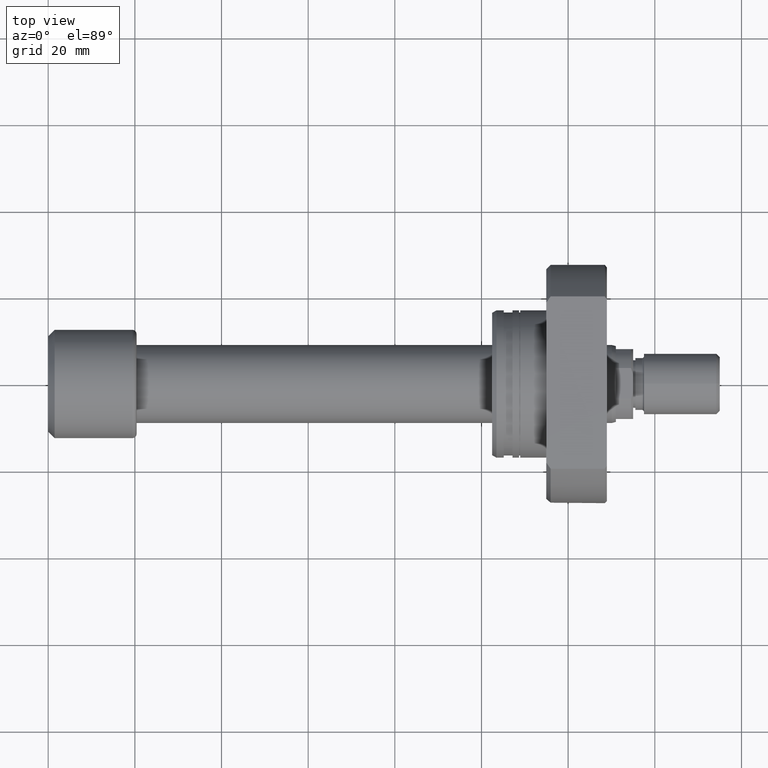
[diagram: clean part render]
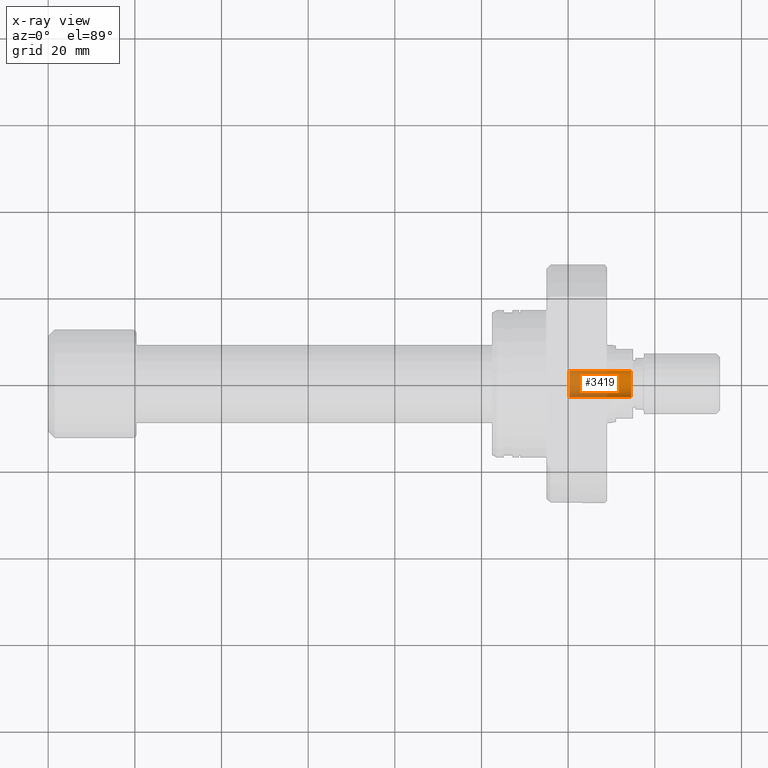
[diagram: x-ray — body ghosted, one internal face saturated and labeled with its STEP entity id]
A machine part, top view, then the same camera in x-ray: the body is ghosted and one INTERNAL B-rep face — a face not visible from any outside direction — is saturated and labeled: STEP entity #3419.
In plain terms, the highlighted cylindrical surface (edge-blend (fillet) strip) has radius 3 mm, axis along (1, -0, 0).
Its self-contained STEP definition (entity closure, byte-faithful):
#184 = EDGE_CURVE ( 'NONE', #1557, #2580, #2961, .T. ) ;
#368 = DIRECTION ( 'NONE',  ( 1.000000000000000000, -1.657264799492230625E-14, -0.000000000000000000 ) ) ;
#469 = VERTEX_POINT ( 'NONE', #3537 ) ;
#563 = AXIS2_PLACEMENT_3D ( 'NONE', #3225, #368, #586 ) ;
#586 = DIRECTION ( 'NONE',  ( 1.850371707708190232E-14, 1.000000000000000000, 0.000000000000000000 ) ) ;
#709 = ORIENTED_EDGE ( 'NONE', *, *, #3554, .T. ) ;
#731 = EDGE_CURVE ( 'NONE', #2580, #469, #2903, .T. ) ;
#876 = DIRECTION ( 'NONE',  ( 1.000000000000000000, -1.657264799492230625E-14, -0.000000000000000000 ) ) ;
#1137 = CARTESIAN_POINT ( 'NONE',  ( 134.5000000000000568, -2.229021155317051935E-12, 0.000000000000000000 ) ) ;
#1217 = VERTEX_POINT ( 'NONE', #3210 ) ;
#1345 = AXIS2_PLACEMENT_3D ( 'NONE', #2220, #3661, #2055 ) ;
#1557 = VERTEX_POINT ( 'NONE', #1675 ) ;
#1675 = CARTESIAN_POINT ( 'NONE',  ( 120.2999999999999261, -3.000000000002648548, 3.673940397442862041E-16 ) ) ;
#1724 = LINE ( 'NONE', #2335, #3016 ) ;
#2055 = DIRECTION ( 'NONE',  ( 1.850371707708190232E-14, 1.000000000000000000, 0.000000000000000000 ) ) ;
#2079 = CYLINDRICAL_SURFACE ( 'NONE', #563, 3.000000000000655032 ) ;
#2220 = CARTESIAN_POINT ( 'NONE',  ( 120.2999999999999829, -1.993689553789153133E-12, 0.000000000000000000 ) ) ;
#2318 = DIRECTION ( 'NONE',  ( 1.000000000000000000, -1.657264799492235042E-14, 0.000000000000000000 ) ) ;
#2335 = CARTESIAN_POINT ( 'NONE',  ( 120.2999999999999261, -3.000000000002648548, 3.673940397442862041E-16 ) ) ;
#2354 = AXIS2_PLACEMENT_3D ( 'NONE', #1137, #2318, #2640 ) ;
#2360 = VECTOR ( 'NONE', #876, 1000.000000000000000 ) ;
#2580 = VERTEX_POINT ( 'NONE', #3679 ) ;
#2616 = CARTESIAN_POINT ( 'NONE',  ( 120.3000000000000256, 2.999999999998661071, 0.000000000000000000 ) ) ;
#2627 = ORIENTED_EDGE ( 'NONE', *, *, #184, .F. ) ;
#2640 = DIRECTION ( 'NONE',  ( -1.850371707708190232E-14, -1.000000000000000000, 0.000000000000000000 ) ) ;
#2900 = CIRCLE ( 'NONE', #2354, 3.000000000000655032 ) ;
#2903 = LINE ( 'NONE', #2616, #2360 ) ;
#2936 = ORIENTED_EDGE ( 'NONE', *, *, #3539, .T. ) ;
#2961 = CIRCLE ( 'NONE', #1345, 3.000000000000655032 ) ;
#3004 = FACE_OUTER_BOUND ( 'NONE', #3636, .T. ) ;
#3016 = VECTOR ( 'NONE', #3482, 1000.000000000000000 ) ;
#3042 = ORIENTED_EDGE ( 'NONE', *, *, #731, .F. ) ;
#3210 = CARTESIAN_POINT ( 'NONE',  ( 134.5000000000000000, -3.000000000002883915, 3.673940397443006501E-16 ) ) ;
#3225 = CARTESIAN_POINT ( 'NONE',  ( 120.2999999999999829, -1.993689553789153133E-12, 0.000000000000000000 ) ) ;
#3419 = ADVANCED_FACE ( 'NONE', ( #3004 ), #2079, .F. ) ;
#3482 = DIRECTION ( 'NONE',  ( 1.000000000000000000, -1.657264799492230625E-14, -0.000000000000000000 ) ) ;
#3537 = CARTESIAN_POINT ( 'NONE',  ( 134.5000000000001137, 2.999999999998425704, 0.000000000000000000 ) ) ;
#3539 = EDGE_CURVE ( 'NONE', #1557, #1217, #1724, .T. ) ;
#3554 = EDGE_CURVE ( 'NONE', #1217, #469, #2900, .T. ) ;
#3636 = EDGE_LOOP ( 'NONE', ( #2627, #2936, #709, #3042 ) ) ;
#3661 = DIRECTION ( 'NONE',  ( 1.000000000000000000, -1.657264799492230625E-14, 0.000000000000000000 ) ) ;
#3679 = CARTESIAN_POINT ( 'NONE',  ( 120.3000000000000256, 2.999999999998661071, 0.000000000000000000 ) ) ;